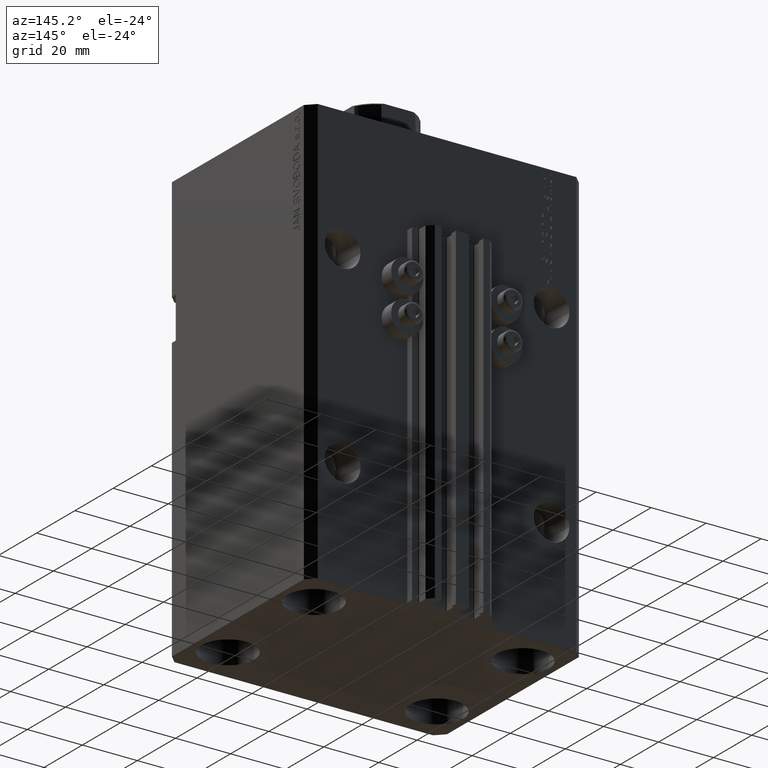
[diagram: clean part render]
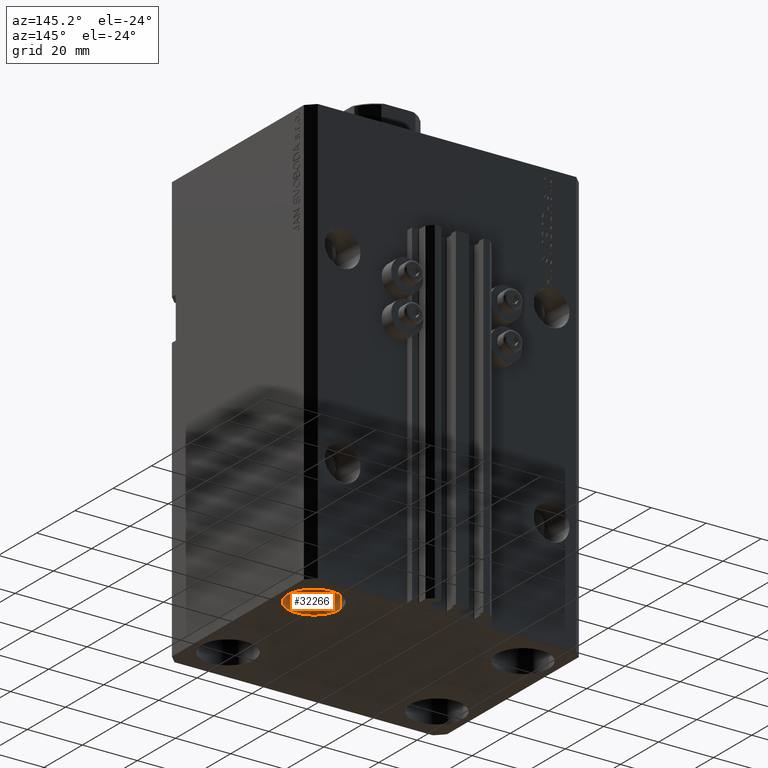
[diagram: same view with one face highlighted and labeled with its STEP entity id]
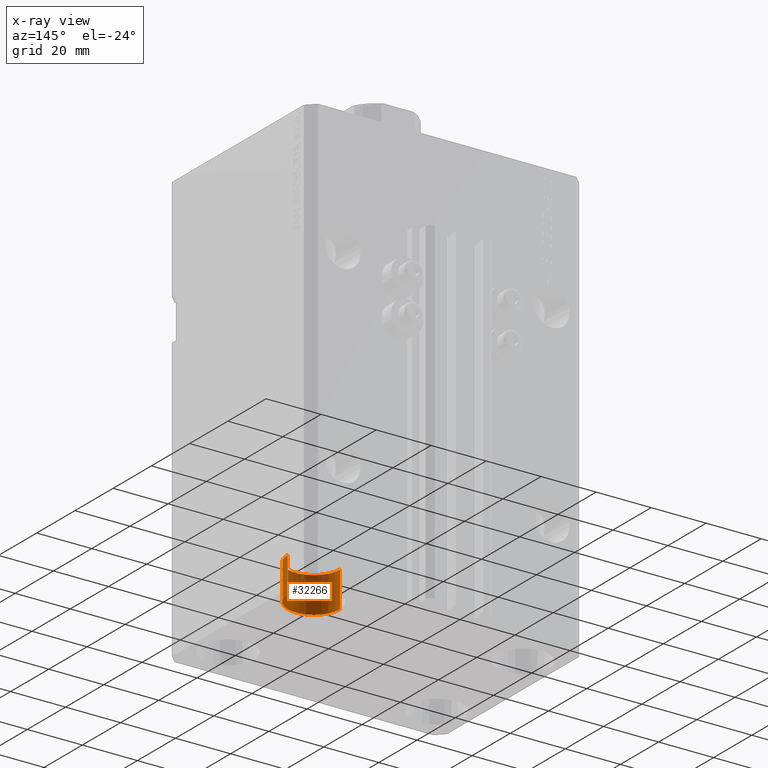
[diagram: x-ray of the same camera — body ghosted, the highlighted face saturated]
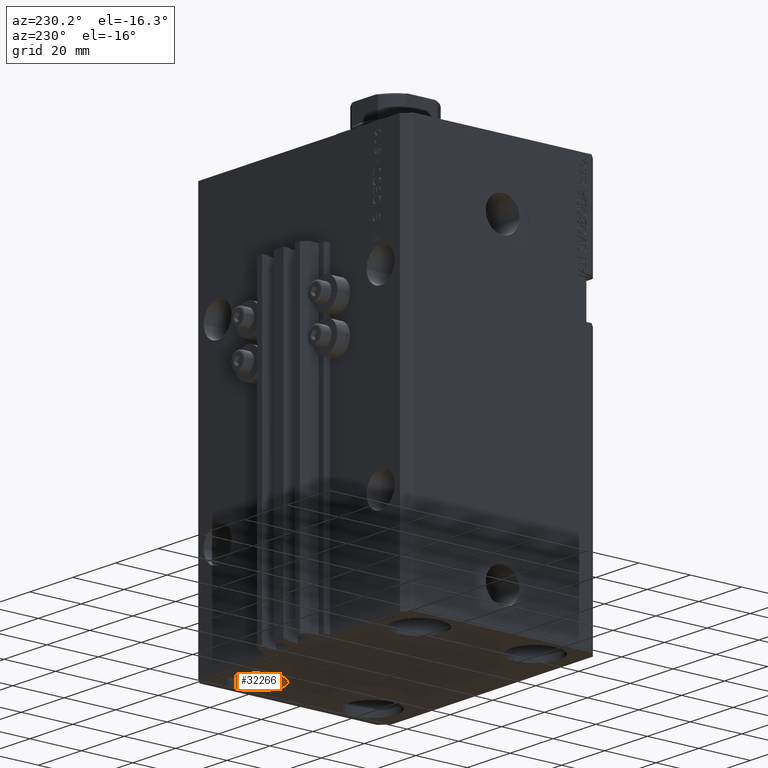
[diagram: same view with one face highlighted and labeled with its STEP entity id]
A machine part, auxiliary view. The second image highlights one B-rep face of the part: STEP entity #32266.
The next image is the same camera in x-ray: the body ghosted, the highlighted face saturated — about 9% of this face is hidden behind the body in this view.
A second angle (auxiliary view) of the same face is appended — the face is thin or edge-on in the first view.
In plain terms, the highlighted cylindrical surface (edge-blend (fillet) strip) has radius 9.5 mm, axis along (-0, -0, -1).
Its self-contained STEP definition (entity closure, byte-faithful):
#196 = DIRECTION ( 'NONE',  ( -0.000000000000000000, -0.000000000000000000, 1.000000000000000000 ) ) ;
#890 = CARTESIAN_POINT ( 'NONE',  ( 47.50000000000000711, 22.50000000000001421, -142.0000000000000000 ) ) ;
#1247 = ORIENTED_EDGE ( 'NONE', *, *, #39409, .F. ) ;
#1510 = CIRCLE ( 'NONE', #10057, 9.500000000000001776 ) ;
#1885 = ORIENTED_EDGE ( 'NONE', *, *, #35959, .F. ) ;
#2203 = CARTESIAN_POINT ( 'NONE',  ( 28.50000000000000355, 22.50000000000001421, -155.0000000000000000 ) ) ;
#2320 = DIRECTION ( 'NONE',  ( -1.000000000000000000, 0.000000000000000000, 0.000000000000000000 ) ) ;
#4330 = DIRECTION ( 'NONE',  ( -0.000000000000000000, -0.000000000000000000, 1.000000000000000000 ) ) ;
#4562 = EDGE_CURVE ( 'NONE', #28714, #15604, #45113, .T. ) ;
#6910 = EDGE_CURVE ( 'NONE', #35627, #28714, #19892, .T. ) ;
#10057 = AXIS2_PLACEMENT_3D ( 'NONE', #22852, #4330, #34056 ) ;
#11158 = DIRECTION ( 'NONE',  ( 1.000000000000000000, 0.000000000000000000, 0.000000000000000000 ) ) ;
#11796 = LINE ( 'NONE', #40568, #19520 ) ;
#11947 = ORIENTED_EDGE ( 'NONE', *, *, #6910, .T. ) ;
#14337 = CARTESIAN_POINT ( 'NONE',  ( 38.00000000000000711, 22.50000000000001421, -142.0000000000000000 ) ) ;
#15226 = AXIS2_PLACEMENT_3D ( 'NONE', #14337, #196, #11158 ) ;
#15604 = VERTEX_POINT ( 'NONE', #22015 ) ;
#15892 = VECTOR ( 'NONE', #24151, 1000.000000000000000 ) ;
#18667 = EDGE_LOOP ( 'NONE', ( #11947, #22806, #1885, #1247 ) ) ;
#19520 = VECTOR ( 'NONE', #26195, 1000.000000000000000 ) ;
#19892 = CIRCLE ( 'NONE', #15226, 9.500000000000001776 ) ;
#22015 = CARTESIAN_POINT ( 'NONE',  ( 47.50000000000000711, 22.50000000000001421, -155.0000000000000000 ) ) ;
#22806 = ORIENTED_EDGE ( 'NONE', *, *, #4562, .T. ) ;
#22852 = CARTESIAN_POINT ( 'NONE',  ( 38.00000000000000711, 22.50000000000001421, -155.0000000000000000 ) ) ;
#24151 = DIRECTION ( 'NONE',  ( -0.000000000000000000, -0.000000000000000000, -1.000000000000000000 ) ) ;
#25594 = CARTESIAN_POINT ( 'NONE',  ( 28.50000000000000355, 22.50000000000001421, -142.0000000000000000 ) ) ;
#26195 = DIRECTION ( 'NONE',  ( -0.000000000000000000, -0.000000000000000000, -1.000000000000000000 ) ) ;
#26477 = AXIS2_PLACEMENT_3D ( 'NONE', #32045, #32525, #2320 ) ;
#28714 = VERTEX_POINT ( 'NONE', #890 ) ;
#30964 = VERTEX_POINT ( 'NONE', #2203 ) ;
#30977 = CARTESIAN_POINT ( 'NONE',  ( 47.50000000000000711, 22.50000000000001421, -142.0000000000000000 ) ) ;
#32045 = CARTESIAN_POINT ( 'NONE',  ( 38.00000000000000711, 22.50000000000001421, -142.0000000000000000 ) ) ;
#32266 = ADVANCED_FACE ( 'NONE', ( #35700 ), #47140, .F. ) ;
#32525 = DIRECTION ( 'NONE',  ( -0.000000000000000000, -0.000000000000000000, -1.000000000000000000 ) ) ;
#34056 = DIRECTION ( 'NONE',  ( 1.000000000000000000, 0.000000000000000000, 0.000000000000000000 ) ) ;
#35627 = VERTEX_POINT ( 'NONE', #25594 ) ;
#35700 = FACE_OUTER_BOUND ( 'NONE', #18667, .T. ) ;
#35959 = EDGE_CURVE ( 'NONE', #30964, #15604, #1510, .T. ) ;
#39409 = EDGE_CURVE ( 'NONE', #35627, #30964, #11796, .T. ) ;
#40568 = CARTESIAN_POINT ( 'NONE',  ( 28.50000000000000355, 22.50000000000001421, -142.0000000000000000 ) ) ;
#45113 = LINE ( 'NONE', #30977, #15892 ) ;
#47140 = CYLINDRICAL_SURFACE ( 'NONE', #26477, 9.500000000000001776 ) ;